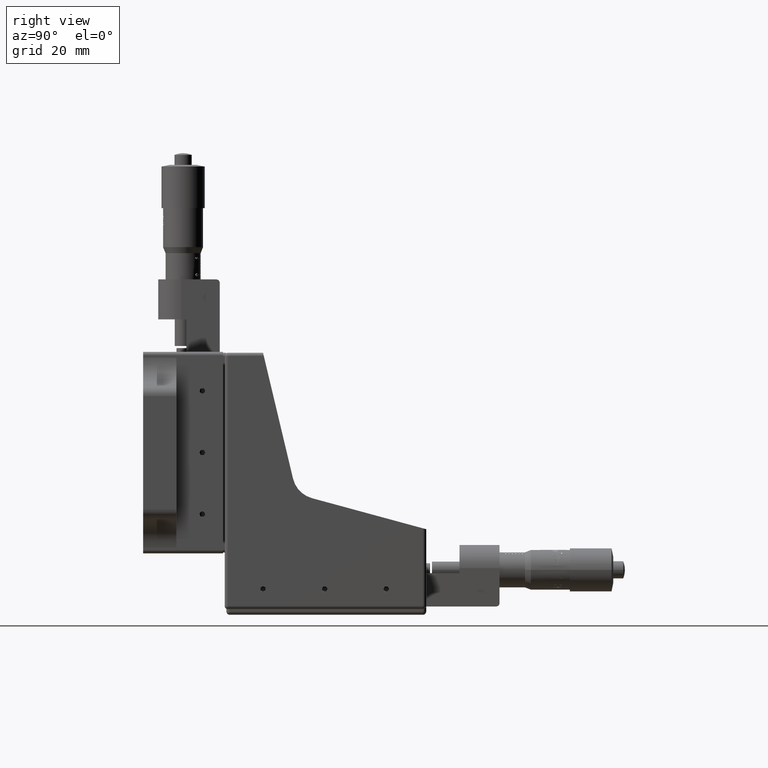
[diagram: clean part render]
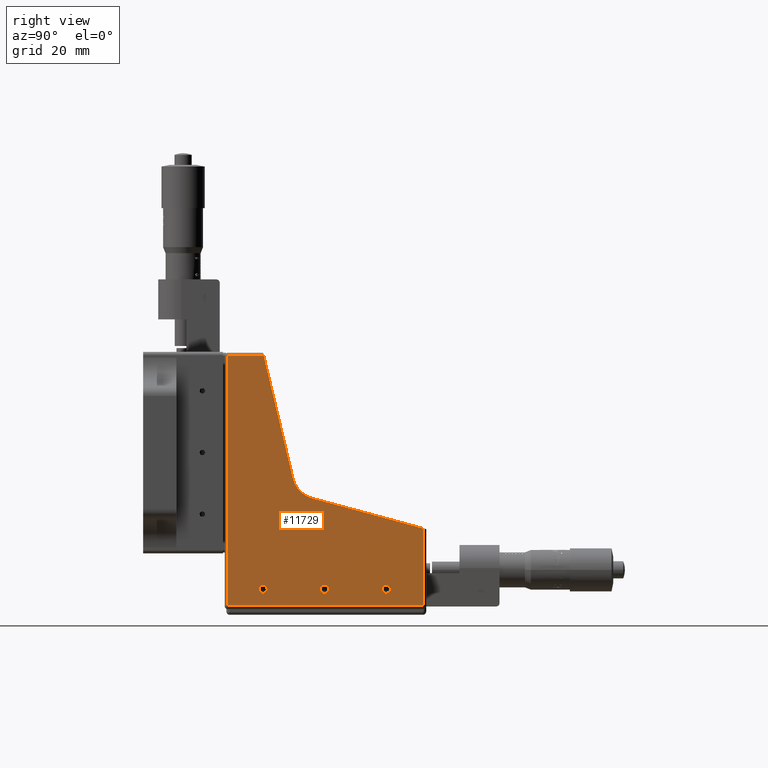
[diagram: same view with one face highlighted and labeled with its STEP entity id]
A machine part, right view. The second image highlights one B-rep face of the part: STEP entity #11729.
In plain terms, the highlighted planar face has unit normal (1, 0, 0).
Its self-contained STEP definition (entity closure, byte-faithful):
#382 = AXIS2_PLACEMENT_3D ( 'NONE', #20441, #23493, #44553 ) ;
#1291 = VERTEX_POINT ( 'NONE', #4923 ) ;
#1372 = DIRECTION ( 'NONE',  ( 1.000000000000000000, -0.000000000000000000, -0.000000000000000000 ) ) ;
#2426 = DIRECTION ( 'NONE',  ( 1.000000000000000000, 0.000000000000000000, 0.000000000000000000 ) ) ;
#2502 = ORIENTED_EDGE ( 'NONE', *, *, #38024, .F. ) ;
#3290 = ORIENTED_EDGE ( 'NONE', *, *, #16987, .F. ) ;
#3423 = DIRECTION ( 'NONE',  ( 0.000000000000000000, 0.000000000000000000, 1.000000000000000000 ) ) ;
#4790 = ORIENTED_EDGE ( 'NONE', *, *, #22959, .T. ) ;
#4923 = CARTESIAN_POINT ( 'NONE',  ( 32.54064078775555657, 52.88479336248715867, -35.10053537573528359 ) ) ;
#4975 = CARTESIAN_POINT ( 'NONE',  ( 32.54064078775555657, 52.88479336248715867, -36.35053537573528359 ) ) ;
#5018 = DIRECTION ( 'NONE',  ( 0.000000000000000000, 0.000000000000000000, -1.000000000000000000 ) ) ;
#5423 = CIRCLE ( 'NONE', #6205, 8.000000000000000000 ) ;
#5611 = ORIENTED_EDGE ( 'NONE', *, *, #9133, .T. ) ;
#5799 = DIRECTION ( 'NONE',  ( 0.000000000000000000, 0.000000000000000000, -1.000000000000000000 ) ) ;
#5838 = EDGE_LOOP ( 'NONE', ( #14386, #5611, #4790, #18229, #46109, #36842, #13727 ) ) ;
#5908 = AXIS2_PLACEMENT_3D ( 'NONE', #12103, #33838, #12558 ) ;
#5956 = VERTEX_POINT ( 'NONE', #32123 ) ;
#6205 = AXIS2_PLACEMENT_3D ( 'NONE', #16154, #16381, #19869 ) ;
#6257 = LINE ( 'NONE', #27985, #18755 ) ;
#7537 = CARTESIAN_POINT ( 'NONE',  ( 32.54064078775555657, 34.38479336248715867, -36.35053537573528359 ) ) ;
#7649 = DIRECTION ( 'NONE',  ( 0.000000000000000000, -1.000000000000000000, 0.000000000000000000 ) ) ;
#7735 = EDGE_CURVE ( 'NONE', #12511, #13304, #6257, .T. ) ;
#7893 = CARTESIAN_POINT ( 'NONE',  ( 32.54064078775555657, 64.88479336248714446, -18.35057774296528876 ) ) ;
#8085 = LINE ( 'NONE', #43180, #35957 ) ;
#9133 = EDGE_CURVE ( 'NONE', #37238, #13683, #8085, .T. ) ;
#9286 = EDGE_LOOP ( 'NONE', ( #35660, #44791 ) ) ;
#10373 = EDGE_CURVE ( 'NONE', #12509, #1291, #31770, .T. ) ;
#10731 = DIRECTION ( 'NONE',  ( 0.000000000000000000, 0.000000000000000000, -1.000000000000000000 ) ) ;
#11729 = ADVANCED_FACE ( 'NONE', ( #44076, #26288, #40796, #37530 ), #40560, .T. ) ;
#12103 = CARTESIAN_POINT ( 'NONE',  ( 32.54064078775555657, 34.38479336248715867, -36.35053537573528359 ) ) ;
#12509 = VERTEX_POINT ( 'NONE', #36210 ) ;
#12511 = VERTEX_POINT ( 'NONE', #28954 ) ;
#12558 = DIRECTION ( 'NONE',  ( 0.000000000000000000, 0.000000000000000000, -1.000000000000000000 ) ) ;
#13210 = LINE ( 'NONE', #17566, #33562 ) ;
#13304 = VERTEX_POINT ( 'NONE', #33450 ) ;
#13683 = VERTEX_POINT ( 'NONE', #43915 ) ;
#13727 = ORIENTED_EDGE ( 'NONE', *, *, #35332, .T. ) ;
#14003 = CARTESIAN_POINT ( 'NONE',  ( 32.54064078775555657, 24.89279336248714714, -3.164535375735279210 ) ) ;
#14386 = ORIENTED_EDGE ( 'NONE', *, *, #24488, .T. ) ;
#14389 = CARTESIAN_POINT ( 'NONE',  ( 32.54064078775555657, 16.12327407641420152, 33.64946462426471641 ) ) ;
#14403 = EDGE_CURVE ( 'NONE', #1291, #12509, #29078, .T. ) ;
#14594 = AXIS2_PLACEMENT_3D ( 'NONE', #7537, #33462, #19173 ) ;
#15109 = CIRCLE ( 'NONE', #24814, 1.250000000000001110 ) ;
#15735 = DIRECTION ( 'NONE',  ( 0.000000000000000000, 0.000000000000000000, -1.000000000000000000 ) ) ;
#15883 = CARTESIAN_POINT ( 'NONE',  ( 32.54064078775555657, 15.88479336248715335, -36.35053537573528359 ) ) ;
#16009 = VECTOR ( 'NONE', #43658, 1000.000000000000227 ) ;
#16154 = CARTESIAN_POINT ( 'NONE',  ( 32.54064078775555657, 32.67499639247807863, -1.310535375735284669 ) ) ;
#16381 = DIRECTION ( 'NONE',  ( -1.000000000000000000, -0.000000000000000000, -0.000000000000000000 ) ) ;
#16623 = LINE ( 'NONE', #45157, #37989 ) ;
#16987 = EDGE_CURVE ( 'NONE', #18820, #27037, #22774, .T. ) ;
#17566 = CARTESIAN_POINT ( 'NONE',  ( 32.54064078775555657, 15.88506254585319155, 34.64946462426471641 ) ) ;
#17801 = VECTOR ( 'NONE', #10731, 1000.000000000000000 ) ;
#18229 = ORIENTED_EDGE ( 'NONE', *, *, #26095, .T. ) ;
#18655 = CARTESIAN_POINT ( 'NONE',  ( 32.54064078775555657, 5.384793362487154234, -41.35053537573528359 ) ) ;
#18755 = VECTOR ( 'NONE', #3423, 1000.000000000000000 ) ;
#18820 = VERTEX_POINT ( 'NONE', #30594 ) ;
#19173 = DIRECTION ( 'NONE',  ( 0.000000000000000000, 0.000000000000000000, -1.000000000000000000 ) ) ;
#19196 = VERTEX_POINT ( 'NONE', #23509 ) ;
#19869 = DIRECTION ( 'NONE',  ( 0.000000000000000000, 0.000000000000000000, -1.000000000000000000 ) ) ;
#20042 = DIRECTION ( 'NONE',  ( 1.000000000000000000, -0.000000000000000000, -0.000000000000000000 ) ) ;
#20116 = AXIS2_PLACEMENT_3D ( 'NONE', #4975, #33510, #15735 ) ;
#20441 = CARTESIAN_POINT ( 'NONE',  ( 32.54064078775555657, 52.88479336248715867, -36.35053537573528359 ) ) ;
#21452 = ORIENTED_EDGE ( 'NONE', *, *, #32118, .F. ) ;
#21905 = LINE ( 'NONE', #7893, #16009 ) ;
#22625 = EDGE_LOOP ( 'NONE', ( #21452, #2502 ) ) ;
#22774 = CIRCLE ( 'NONE', #14594, 1.250000000000001110 ) ;
#22862 = VERTEX_POINT ( 'NONE', #14003 ) ;
#22959 = EDGE_CURVE ( 'NONE', #13683, #41424, #45575, .T. ) ;
#23493 = DIRECTION ( 'NONE',  ( 1.000000000000000000, -0.000000000000000000, -0.000000000000000000 ) ) ;
#23509 = CARTESIAN_POINT ( 'NONE',  ( 32.54064078775555657, 15.88479336248715335, -35.10053537573528359 ) ) ;
#24488 = EDGE_CURVE ( 'NONE', #22862, #37238, #13210, .T. ) ;
#24536 = CARTESIAN_POINT ( 'NONE',  ( 32.54064078775555657, 15.88479336248715335, -37.60053537573529070 ) ) ;
#24814 = AXIS2_PLACEMENT_3D ( 'NONE', #15883, #1372, #30354 ) ;
#26095 = EDGE_CURVE ( 'NONE', #41424, #12511, #16623, .T. ) ;
#26288 = FACE_BOUND ( 'NONE', #36551, .T. ) ;
#27037 = VERTEX_POINT ( 'NONE', #31825 ) ;
#27985 = CARTESIAN_POINT ( 'NONE',  ( 32.54064078775555657, 63.88479336248714446, -1.310535375735284669 ) ) ;
#28954 = CARTESIAN_POINT ( 'NONE',  ( 32.54064078775555657, 63.88479336248714446, -41.35053537573528359 ) ) ;
#29078 = CIRCLE ( 'NONE', #20116, 1.250000000000001110 ) ;
#30354 = DIRECTION ( 'NONE',  ( 0.000000000000000000, 0.000000000000000000, -1.000000000000000000 ) ) ;
#30594 = CARTESIAN_POINT ( 'NONE',  ( 32.54064078775555657, 34.38479336248715867, -37.60053537573529070 ) ) ;
#31770 = CIRCLE ( 'NONE', #382, 1.250000000000001110 ) ;
#31825 = CARTESIAN_POINT ( 'NONE',  ( 32.54064078775555657, 34.38479336248715867, -35.10053537573528359 ) ) ;
#32118 = EDGE_CURVE ( 'NONE', #42314, #19196, #15109, .T. ) ;
#32123 = CARTESIAN_POINT ( 'NONE',  ( 32.54064078775555657, 30.57779336248713520, -9.030751658391935166 ) ) ;
#32880 = ORIENTED_EDGE ( 'NONE', *, *, #46047, .F. ) ;
#33450 = CARTESIAN_POINT ( 'NONE',  ( 32.54064078775555657, 63.88479336248714446, -18.07891813750362431 ) ) ;
#33462 = DIRECTION ( 'NONE',  ( 1.000000000000000000, -0.000000000000000000, -0.000000000000000000 ) ) ;
#33510 = DIRECTION ( 'NONE',  ( 1.000000000000000000, -0.000000000000000000, -0.000000000000000000 ) ) ;
#33562 = VECTOR ( 'NONE', #42827, 1000.000000000000227 ) ;
#33838 = DIRECTION ( 'NONE',  ( 1.000000000000000000, -0.000000000000000000, -0.000000000000000000 ) ) ;
#35332 = EDGE_CURVE ( 'NONE', #5956, #22862, #5423, .T. ) ;
#35660 = ORIENTED_EDGE ( 'NONE', *, *, #10373, .F. ) ;
#35957 = VECTOR ( 'NONE', #7649, 1000.000000000000000 ) ;
#36210 = CARTESIAN_POINT ( 'NONE',  ( 32.54064078775555657, 52.88479336248715867, -37.60053537573529070 ) ) ;
#36551 = EDGE_LOOP ( 'NONE', ( #3290, #32880 ) ) ;
#36842 = ORIENTED_EDGE ( 'NONE', *, *, #36866, .T. ) ;
#36866 = EDGE_CURVE ( 'NONE', #13304, #5956, #21905, .T. ) ;
#37238 = VERTEX_POINT ( 'NONE', #14389 ) ;
#37530 = FACE_OUTER_BOUND ( 'NONE', #5838, .T. ) ;
#37989 = VECTOR ( 'NONE', #41651, 1000.000000000000000 ) ;
#38024 = EDGE_CURVE ( 'NONE', #19196, #42314, #40714, .T. ) ;
#39415 = AXIS2_PLACEMENT_3D ( 'NONE', #41260, #2426, #5018 ) ;
#40560 = PLANE ( 'NONE',  #39415 ) ;
#40714 = CIRCLE ( 'NONE', #45949, 1.250000000000001110 ) ;
#40796 = FACE_BOUND ( 'NONE', #22625, .T. ) ;
#41260 = CARTESIAN_POINT ( 'NONE',  ( 32.54064078775555657, 32.67499639247807863, -1.310535375735284669 ) ) ;
#41424 = VERTEX_POINT ( 'NONE', #18655 ) ;
#41651 = DIRECTION ( 'NONE',  ( -0.000000000000000000, 1.000000000000000000, 0.000000000000000000 ) ) ;
#42047 = CARTESIAN_POINT ( 'NONE',  ( 32.54064078775555657, 15.88479336248715335, -36.35053537573528359 ) ) ;
#42314 = VERTEX_POINT ( 'NONE', #24536 ) ;
#42761 = CARTESIAN_POINT ( 'NONE',  ( 32.54064078775555657, 5.384793362487155122, -1.310535375735284669 ) ) ;
#42827 = DIRECTION ( 'NONE',  ( -0.000000000000000000, -0.2317275839231485168, 0.9727807187897692387 ) ) ;
#43180 = CARTESIAN_POINT ( 'NONE',  ( 32.54064078775555657, 32.67499639247807863, 33.64946462426471641 ) ) ;
#43246 = CIRCLE ( 'NONE', #5908, 1.250000000000001110 ) ;
#43658 = DIRECTION ( 'NONE',  ( 0.000000000000000000, -0.9650248887684033106, 0.2621582805435118679 ) ) ;
#43915 = CARTESIAN_POINT ( 'NONE',  ( 32.54064078775555657, 5.384793362487155122, 33.64946462426471641 ) ) ;
#44076 = FACE_BOUND ( 'NONE', #9286, .T. ) ;
#44553 = DIRECTION ( 'NONE',  ( 0.000000000000000000, 0.000000000000000000, -1.000000000000000000 ) ) ;
#44791 = ORIENTED_EDGE ( 'NONE', *, *, #14403, .F. ) ;
#45157 = CARTESIAN_POINT ( 'NONE',  ( 32.54064078775555657, 32.67499639247807863, -41.35053537573528359 ) ) ;
#45575 = LINE ( 'NONE', #42761, #17801 ) ;
#45949 = AXIS2_PLACEMENT_3D ( 'NONE', #42047, #20042, #5799 ) ;
#46047 = EDGE_CURVE ( 'NONE', #27037, #18820, #43246, .T. ) ;
#46109 = ORIENTED_EDGE ( 'NONE', *, *, #7735, .T. ) ;